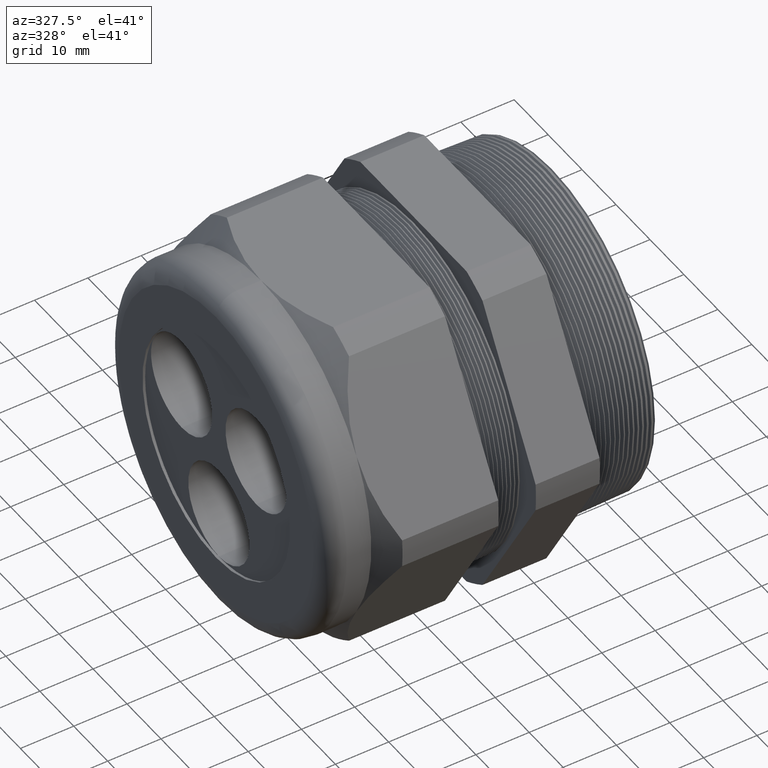
[diagram: clean part render]
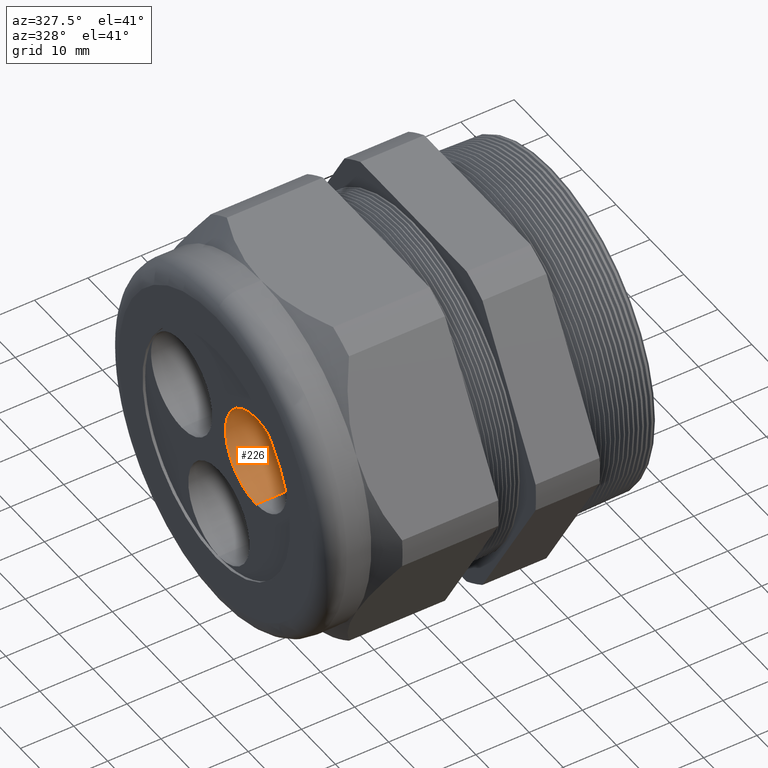
[diagram: same view with one face highlighted and labeled with its STEP entity id]
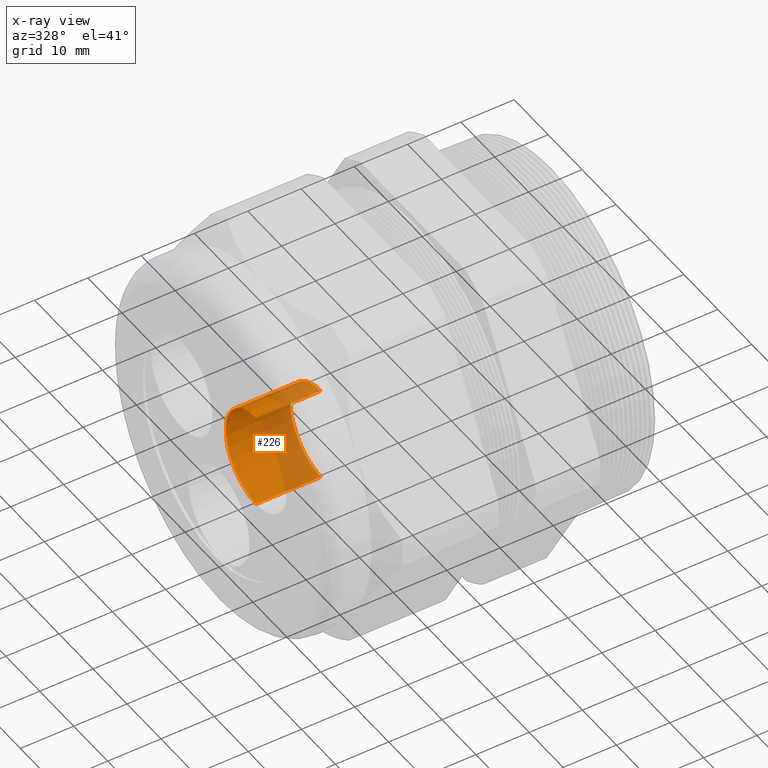
[diagram: x-ray of the same camera — body ghosted, the highlighted face saturated]
A machine part, auxiliary view. The second image highlights one B-rep face of the part: STEP entity #226.
The next image is the same camera in x-ray: the body ghosted, the highlighted face saturated — about 43% of this face is hidden behind the body in this view.
In plain terms, the highlighted cylindrical surface (partial cylindrical patch) has radius 9.017 mm, axis along (-1, 0, 0).
Its self-contained STEP definition (entity closure, byte-faithful):
#152 = EDGE_CURVE ( 'NONE', #5312, #5331, #658, .T. ) ;
#206 = EDGE_LOOP ( 'NONE', ( #247, #217, #218, #5372 ) ) ;
#217 = ORIENTED_EDGE ( 'NONE', *, *, #152, .F. ) ;
#218 = ORIENTED_EDGE ( 'NONE', *, *, #5416, .T. ) ;
#226 = ADVANCED_FACE ( 'NONE', ( #806 ), #805, .F. ) ;
#247 = ORIENTED_EDGE ( 'NONE', *, *, #5307, .F. ) ;
#369 = VERTEX_POINT ( 'NONE', #1038 ) ;
#650 = DIRECTION ( 'NONE',  ( 0.0000000000000000000, 0.8660254037844362700, -0.5000000000000041100 ) ) ;
#651 = DIRECTION ( 'NONE',  ( -1.000000000000000000, 0.0000000000000000000, 0.0000000000000000000 ) ) ;
#652 = CARTESIAN_POINT ( 'NONE',  ( -1.739999999999999500, -0.4317829458188442400, 0.2492900000000020100 ) ) ;
#653 = AXIS2_PLACEMENT_3D ( 'NONE', #652, #651, #650 ) ;
#658 = CIRCLE ( 'NONE', #653, 0.3550000000000000400 ) ;
#800 = DIRECTION ( 'NONE',  ( 0.0000000000000000000, 0.0000000000000000000, 1.000000000000000000 ) ) ;
#801 = DIRECTION ( 'NONE',  ( -1.000000000000000000, 0.0000000000000000000, 0.0000000000000000000 ) ) ;
#802 = CARTESIAN_POINT ( 'NONE',  ( -1.739999999999999500, -0.4317829458188442400, 0.2492900000000020100 ) ) ;
#803 = AXIS2_PLACEMENT_3D ( 'NONE', #802, #801, #800 ) ;
#805 = CYLINDRICAL_SURFACE ( 'NONE', #803, 0.3550000000000000400 ) ;
#806 = FACE_OUTER_BOUND ( 'NONE', #206, .T. ) ;
#1038 = CARTESIAN_POINT ( 'NONE',  ( -2.219999999999999800, -0.4317829458188442400, 0.6042900000000019900 ) ) ;
#1797 = DIRECTION ( 'NONE',  ( 0.0000000000000000000, 0.8660254037844362700, -0.5000000000000041100 ) ) ;
#1798 = DIRECTION ( 'NONE',  ( -1.000000000000000000, 0.0000000000000000000, 0.0000000000000000000 ) ) ;
#1799 = CARTESIAN_POINT ( 'NONE',  ( -2.219999999999999800, -0.4317829458188442400, 0.2492900000000020100 ) ) ;
#1800 = AXIS2_PLACEMENT_3D ( 'NONE', #1799, #1798, #1797 ) ;
#1801 = CIRCLE ( 'NONE', #1800, 0.3550000000000000400 ) ;
#3432 = CARTESIAN_POINT ( 'NONE',  ( -2.219999999999999800, -0.4317829458188441900, -0.1057099999999979600 ) ) ;
#3480 = CARTESIAN_POINT ( 'NONE',  ( -1.739999999999999500, -0.4317829458188442400, 0.6042900000000019900 ) ) ;
#3481 = DIRECTION ( 'NONE',  ( -1.000000000000000000, 0.0000000000000000000, 0.0000000000000000000 ) ) ;
#3482 = VECTOR ( 'NONE', #3481, 39.37007874015748100 ) ;
#3483 = CARTESIAN_POINT ( 'NONE',  ( -1.739999999999999500, -0.4317829458188441900, -0.1057099999999979600 ) ) ;
#3484 = LINE ( 'NONE', #3483, #3482 ) ;
#3490 = CARTESIAN_POINT ( 'NONE',  ( -1.739999999999999500, -0.4317829458188441900, -0.1057099999999979600 ) ) ;
#3659 = DIRECTION ( 'NONE',  ( -1.000000000000000000, 0.0000000000000000000, 0.0000000000000000000 ) ) ;
#3660 = VECTOR ( 'NONE', #3659, 39.37007874015748100 ) ;
#3661 = CARTESIAN_POINT ( 'NONE',  ( -1.739999999999999500, -0.4317829458188442400, 0.6042900000000019900 ) ) ;
#3662 = LINE ( 'NONE', #3661, #3660 ) ;
#4376 = EDGE_CURVE ( 'NONE', #369, #5290, #1801, .T. ) ;
#5290 = VERTEX_POINT ( 'NONE', #3432 ) ;
#5307 = EDGE_CURVE ( 'NONE', #5331, #5290, #3484, .T. ) ;
#5312 = VERTEX_POINT ( 'NONE', #3480 ) ;
#5331 = VERTEX_POINT ( 'NONE', #3490 ) ;
#5372 = ORIENTED_EDGE ( 'NONE', *, *, #4376, .T. ) ;
#5416 = EDGE_CURVE ( 'NONE', #5312, #369, #3662, .T. ) ;